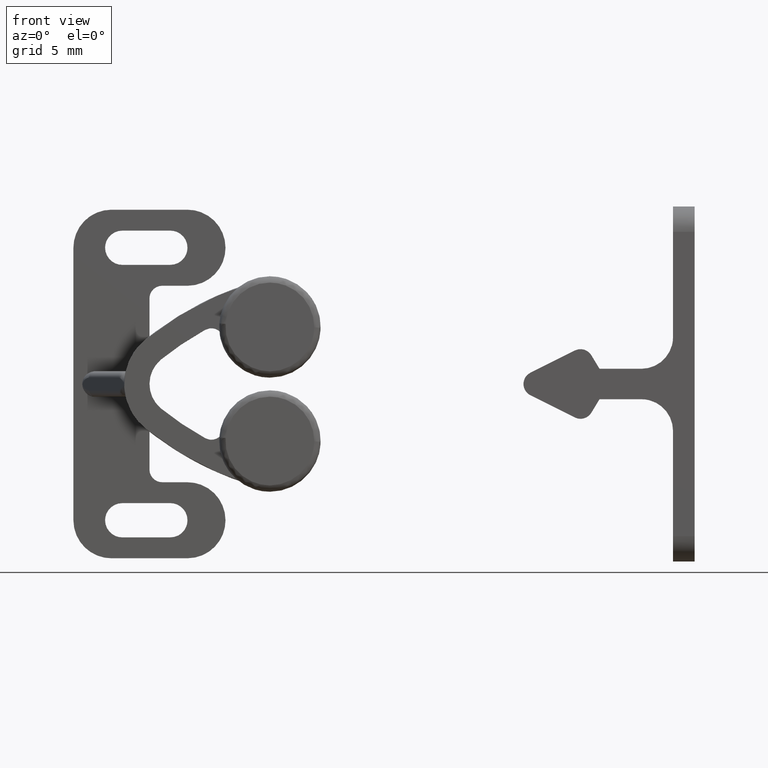
[diagram: clean part render]
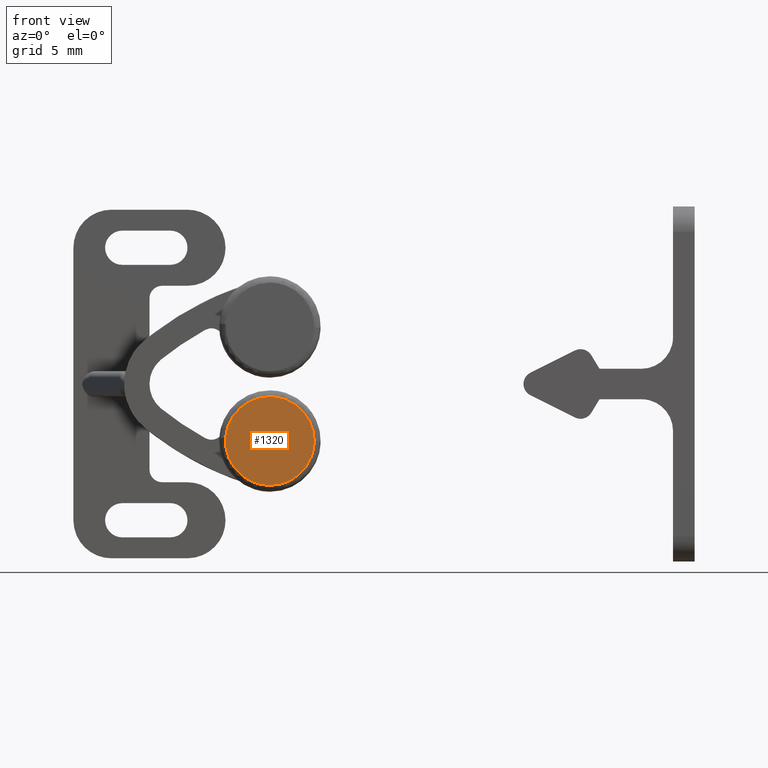
[diagram: same view with one face highlighted and labeled with its STEP entity id]
A machine part, front view. The second image highlights one B-rep face of the part: STEP entity #1320.
In plain terms, the highlighted face is a freeform B-spline surface patch.
Its self-contained STEP definition (entity closure, byte-faithful):
#722=CARTESIAN_POINT('',(12.008520140765730,-12.0,0.244066380574362));
#723=VERTEX_POINT('',#722);
#724=CARTESIAN_POINT('',(15.500000000000000,-12.0,-3.500000000000000));
#725=VERTEX_POINT('',#724);
#726=CARTESIAN_POINT('',(12.008520140765730,-12.0,0.244066380574362));
#727=CARTESIAN_POINT('',(11.987582272756489,-12.000000000000020,-0.054272509740375));
#728=CARTESIAN_POINT('',(12.013220832420780,-11.999999999999989,-0.490718284374614));
#729=CARTESIAN_POINT('',(12.183442436530310,-12.000000000000011,-1.173821141332074));
#730=CARTESIAN_POINT('',(12.433544767352620,-11.999999999999980,-1.738042065795376));
#731=CARTESIAN_POINT('',(12.801167537969430,-12.000000000000080,-2.250369420272718));
#732=CARTESIAN_POINT('',(13.210537515876240,-11.999999999999959,-2.667395378544679));
#733=CARTESIAN_POINT('',(13.621889042216260,-12.000000000000011,-2.970138989395142));
#734=CARTESIAN_POINT('',(14.153144717923951,-12.0,-3.247156034343188));
#735=CARTESIAN_POINT('',(14.752352193108580,-12.0,-3.446003337118223));
#736=CARTESIAN_POINT('',(15.245793376265359,-12.0,-3.500044020539189));
#737=CARTESIAN_POINT('',(15.500000000000000,-12.0,-3.500000000000000));
#738=B_SPLINE_CURVE_WITH_KNOTS('',3,(#726,#727,#728,#729,#730,#731,#732,#733,#734,#735,#736,#737),.UNSPECIFIED.,.F.,.U.,(4,1,1,1,1,1,1,1,1,4),(0.000000039254636,0.897193689814350,1.300942172768778,2.108432053908689,2.736483950061599,3.185060620652080,3.857961406451563,4.261707521110146,4.979476527947446,5.742091064652626),.UNSPECIFIED.);
#739=EDGE_CURVE('',#723,#725,#738,.T.);
#755=CARTESIAN_POINT('',(18.999723656953119,-12.0,-0.043981139725324));
#756=VERTEX_POINT('',#755);
#769=CARTESIAN_POINT('',(15.500000000000000,-12.0,-3.500000000000000));
#770=CARTESIAN_POINT('',(15.727240129699950,-11.999999999999980,-3.500025463004830));
#771=CARTESIAN_POINT('',(16.110697433285779,-12.000000000000050,-3.462515471094543));
#772=CARTESIAN_POINT('',(16.729454461638220,-11.999999999999959,-3.296796586199524));
#773=CARTESIAN_POINT('',(17.221084040772830,-12.000000000000030,-3.066396271741540));
#774=CARTESIAN_POINT('',(17.713257138298289,-12.0,-2.727768567061970));
#775=CARTESIAN_POINT('',(18.141641057873059,-11.999999999999980,-2.329777959252099));
#776=CARTESIAN_POINT('',(18.577526007467249,-12.000000000000011,-1.728676876163167));
#777=CARTESIAN_POINT('',(18.907895754104679,-12.000000000000011,-0.951823690683651));
#778=CARTESIAN_POINT('',(18.995899740355799,-12.0,-0.356424090323358));
#779=CARTESIAN_POINT('',(18.999723656953119,-12.0,-0.043981139725324));
#780=B_SPLINE_CURVE_WITH_KNOTS('',3,(#769,#770,#771,#772,#773,#774,#775,#776,#777,#778,#779),.UNSPECIFIED.,.F.,.U.,(4,1,1,1,1,1,1,1,4),(0.000000038094504,0.681719784269905,1.150418373892991,1.917373402068134,2.300848008921780,2.939955898503185,3.664291667290947,4.516466149915103,5.453838522584138),.UNSPECIFIED.);
#781=EDGE_CURVE('',#725,#756,#780,.T.);
#809=CARTESIAN_POINT('',(15.500000000000000,-12.0,3.500000000000000));
#810=VERTEX_POINT('',#809);
#811=CARTESIAN_POINT('',(15.500000000000000,-12.0,3.500000000000000));
#812=CARTESIAN_POINT('',(15.308470416016940,-12.0,3.500005954548869));
#813=CARTESIAN_POINT('',(14.870668207499580,-12.000000000000011,3.464008588723323));
#814=CARTESIAN_POINT('',(14.287237869167271,-12.000000000000011,3.302710246064689));
#815=CARTESIAN_POINT('',(13.705562960610649,-12.0,3.024870213819998));
#816=CARTESIAN_POINT('',(13.290256735834820,-11.999999999999931,2.731095466659067));
#817=CARTESIAN_POINT('',(12.894024661657280,-12.000000000000149,2.352772367394364));
#818=CARTESIAN_POINT('',(12.508335358140471,-11.999999999999620,1.869839531154644));
#819=CARTESIAN_POINT('',(12.149414864561230,-12.000000000000281,1.139341777363464));
#820=CARTESIAN_POINT('',(12.029428653816479,-11.999999999999920,0.544328085012077));
#821=CARTESIAN_POINT('',(12.008520140765730,-12.0,0.244066380574362));
#822=B_SPLINE_CURVE_WITH_KNOTS('',3,(#811,#812,#813,#814,#815,#816,#817,#818,#819,#820,#821),.UNSPECIFIED.,.F.,.U.,(4,1,1,1,1,1,1,1,4),(0.000000038387301,0.574596486063112,1.313388533397117,1.805916126091907,2.503661721647142,2.831987286390565,3.447636805117427,4.350600121155448,5.253552624579998),.UNSPECIFIED.);
#823=EDGE_CURVE('',#810,#723,#822,.T.);
#825=CARTESIAN_POINT('',(18.999723656953119,-12.0,-0.043981139725324));
#826=CARTESIAN_POINT('',(19.002464854328281,-12.0,0.172477668133713));
#827=CARTESIAN_POINT('',(18.968752500779239,-12.0,0.591443856119780));
#828=CARTESIAN_POINT('',(18.790324920452811,-11.999999999999980,1.263492839640745));
#829=CARTESIAN_POINT('',(18.497874875885831,-12.000000000000020,1.848367702428527));
#830=CARTESIAN_POINT('',(18.056830709171798,-11.999999999999980,2.422009065944313));
#831=CARTESIAN_POINT('',(17.523262543102799,-12.0,2.893505878514868));
#832=CARTESIAN_POINT('',(16.935374965085071,-12.000000000000020,3.210657351661571));
#833=CARTESIAN_POINT('',(16.264820733852190,-11.999999999999920,3.438677195855722));
#834=CARTESIAN_POINT('',(15.817514100028390,-12.000000000000160,3.500125475817952));
#835=CARTESIAN_POINT('',(15.500000000000000,-12.0,3.500000000000000));
#836=B_SPLINE_CURVE_WITH_KNOTS('',3,(#825,#826,#827,#828,#829,#830,#831,#832,#833,#834,#835),.UNSPECIFIED.,.F.,.U.,(4,1,1,1,1,1,1,1,4),(0.000000041118218,0.649429230191434,1.255564788609272,2.078180489368729,2.597734826853817,3.420329251094133,4.199649596005223,4.589313485094065,5.541804772430585),.UNSPECIFIED.);
#837=EDGE_CURVE('',#756,#810,#836,.T.);
#1309=CARTESIAN_POINT('',(11.650767346363811,-12.0,-3.849649986432642));
#1310=CARTESIAN_POINT('',(11.650767346363811,-12.0,3.849650174187273));
#1311=CARTESIAN_POINT('',(19.349340305946821,-12.0,-3.849649986432642));
#1312=CARTESIAN_POINT('',(19.349340305946821,-12.0,3.849650174187273));
#1313=B_SPLINE_SURFACE_WITH_KNOTS('',1,1,((#1309,#1311),(#1310,#1312)),.UNSPECIFIED.,.F.,.F.,.U.,(2,2),(2,2),(0.0,7.699300160619915),(0.0,7.698572959583012),.UNSPECIFIED.);
#1314=ORIENTED_EDGE('',*,*,#781,.T.);
#1315=ORIENTED_EDGE('',*,*,#837,.T.);
#1316=ORIENTED_EDGE('',*,*,#823,.T.);
#1317=ORIENTED_EDGE('',*,*,#739,.T.);
#1318=EDGE_LOOP('',(#1314,#1315,#1316,#1317));
#1319=FACE_OUTER_BOUND('',#1318,.T.);
#1320=ADVANCED_FACE('',(#1319),#1313,.F.);